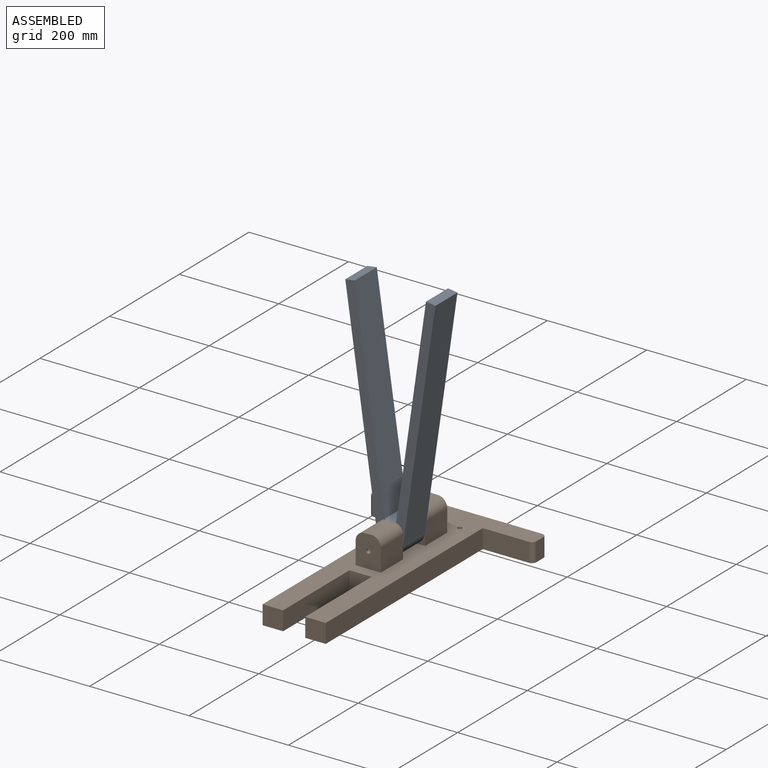
[diagram: assembled view]
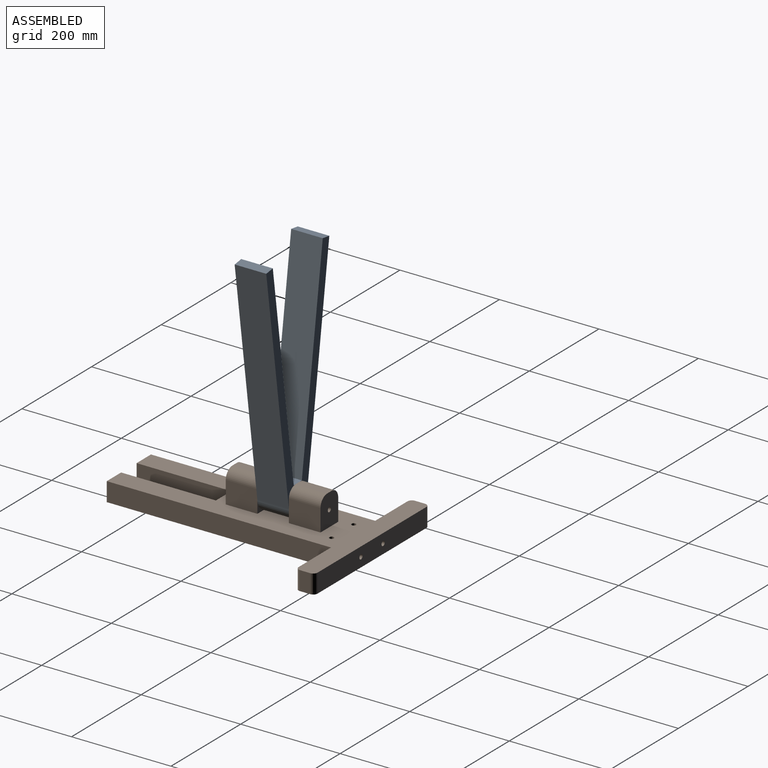
[diagram: assembled view, second angle]
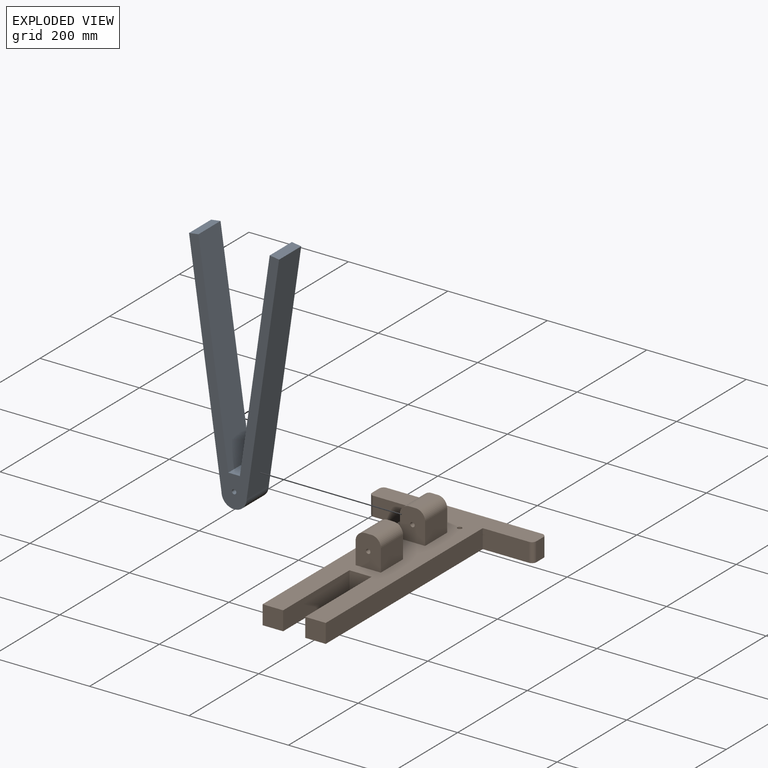
[diagram: exploded view]
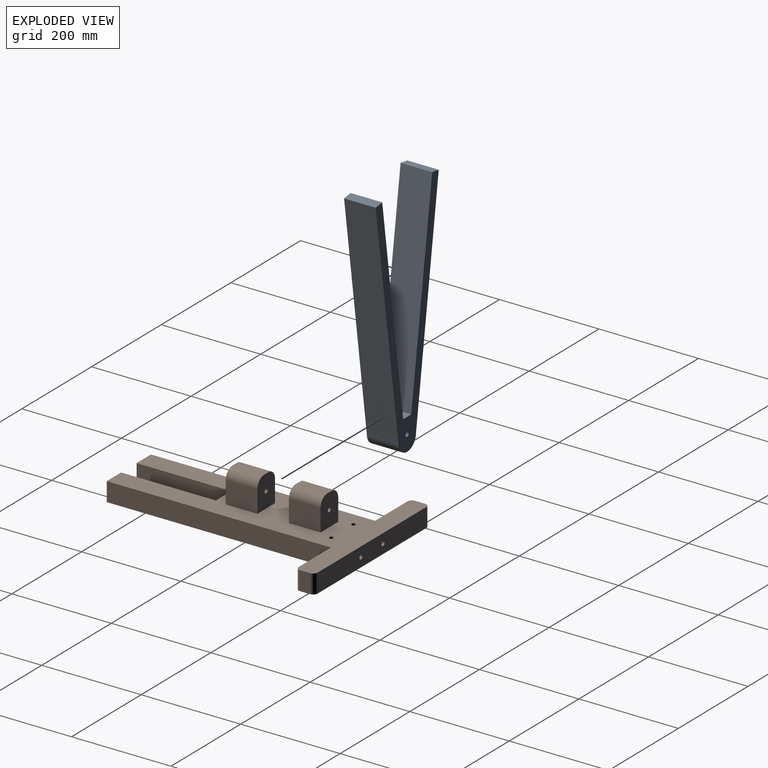
[diagram: exploded view, second angle]
ASSEMBLY  parts=2 mates=2
PART A: 11 faces, bbox 480.6x181.1x63.5 mm
  f0: plane 452.53x65.16mm, normal (-0.14,0.99,0), area 29032.2mm2, adj f1,f8,f9,f10
  f1: cylinder r=25.4mm len=63.5mm, axis (0,0,-1), area 5067.1mm2, adj f0,f2,f9,f10
  f2: plane 452.53x65.16mm, normal (-0.14,-0.99,0), area 29032.2mm2, adj f1,f3,f9,f10
  f3: plane 63.5x18.86mm, normal (0.99,-0.14,0), area 1209.7mm2, adj f2,f4,f9,f10
  f4: plane 417.15x63.5mm, normal (0.14,0.99,0), area 26762.1mm2, adj f3,f5,f9,f10
  f5: plane 63.5x23.28mm, normal (1,0,0), area 1478.3mm2, adj f4,f6,f9,f10
  f6: plane 417.15x63.5mm, normal (0.14,-0.99,0), area 26762.1mm2, adj f5,f8,f9,f10
  f7: cylinder r=4.45mm len=63.5mm, axis (0,0,-1), area 1773.5mm2, adj f9,f10
  f8: plane 63.5x18.86mm, normal (0.99,0.14,0), area 1209.7mm2, adj f0,f6,f9,f10
  f9: plane 480.65x181.13mm, normal (0,0,1), area 19100.8mm2, adj f0,f1,f2,f3,f4,f5,f6,f7
  f10: plane 480.65x181.13mm, normal (0,0,-1), area 19100.8mm2, adj f0,f1,f2,f3,f4,f5,f6,f7
PART B: 46 faces, bbox 489x330.2x101.6 mm
  f0: plane 488.95x330.2mm, normal (0,0,1), area 54727.3mm2, adj f3,f4,f5,f6,f7,f8,f9,f11
  f1: cylinder r=4.45mm len=59.06mm, axis (-1,0,0), area 1570.3mm2, adj f14,f21,f24
  f2: cylinder r=4.45mm len=59.06mm, axis (-1,0,0), area 1570.3mm2, adj f14,f16,f19
  f3: plane 450.85x38.1mm, normal (0,1,0), area 17177.4mm2, adj f0,f9,f10,f12
  f4: plane 450.85x38.1mm, normal (0,-1,0), area 17177.4mm2, adj f0,f5,f10,f11
  f5: plane 41.28x38.1mm, normal (1,0,0), area 1572.6mm2, adj f0,f4,f6,f10
  f6: plane 190.5x38.1mm, normal (0,1,0), area 7258.1mm2, adj f0,f5,f7,f10
  f7: plane 44.45x38.1mm, normal (1,0,0), area 1693.5mm2, adj f0,f6,f8,f10
  f8: plane 190.5x38.1mm, normal (0,-1,0), area 7258mm2, adj f0,f7,f9,f10
  f9: plane 41.28x38.1mm, normal (1,0,0), area 1572.6mm2, adj f0,f3,f8,f10
  f10: plane 488.95x330.2mm, normal (0,0,-1), area 61303mm2, adj f3,f4,f5,f6,f7,f8,f9,f11
  f11: plane 92.71x38.1mm, normal (1,0,0), area 3532.3mm2, adj f0,f4,f10,f45
  f12: plane 92.71x38.1mm, normal (1,0,0), area 3532.3mm2, adj f0,f3,f10,f43
  f13: plane 38.1x20.32mm, normal (0,1,0), area 774.2mm2, adj f0,f10,f42,f43
  f14: plane 312.42x38.1mm, normal (-1,0,0), area 11779.1mm2, adj f0,f1,f2,f10,f42,f44
  f15: plane 38.1x20.32mm, normal (0,-1,0), area 774.2mm2, adj f0,f10,f44,f45
  f16: cylinder r=4.45mm len=19.05mm, axis (0,0,1), area 453mm2, adj f0,f2,f18
  f17: plane 8.89x8.89mm, normal (-1,0,0), area 62.1mm2, adj f18
  f18: cylinder r=4.45mm len=17.15mm, axis (-1,0,0), area 399.8mm2, adj f16,f17,f19
  f19: cylinder r=4.45mm len=9.53mm, axis (0,0,1), area 187mm2, adj f2,f18,f20
  f20: plane 8.89x8.89mm, normal (0,0,1), area 62.1mm2, adj f19
  f21: cylinder r=4.45mm len=19.05mm, axis (0,0,1), area 453mm2, adj f0,f1,f23
  f22: plane 8.89x8.89mm, normal (-1,0,0), area 62.1mm2, adj f23
  f23: cylinder r=4.45mm len=17.15mm, axis (-1,0,0), area 399.8mm2, adj f21,f22,f24
  f24: cylinder r=4.45mm len=9.53mm, axis (0,0,1), area 187mm2, adj f1,f23,f25
  f25: plane 8.89x8.89mm, normal (0,0,1), area 62.1mm2, adj f24
  f26: plane 63.5x44.45mm, normal (0,-1,0), area 2822.6mm2, adj f0,f30,f31,f32
  f27: plane 63.5x44.45mm, normal (0,1,0), area 2822.6mm2, adj f0,f28,f31,f32
  f28: cylinder r=19.05mm len=63.5mm, axis (-1,0,0), area 1900.2mm2, adj f27,f29,f31,f32
  f29: plane 63.5x12.7mm, normal (0,0,1), area 806.5mm2, adj f28,f30,f31,f32
  f30: cylinder r=19.05mm len=63.5mm, axis (-1,0,0), area 1900.2mm2, adj f26,f29,f31,f32
  f31: plane 63.5x50.8mm, normal (1,0,0), area 3008mm2, adj f0,f26,f27,f28,f29,f30,f41
  f32: plane 63.5x50.8mm, normal (-1,0,0), area 3008mm2, adj f0,f26,f27,f28,f29,f30,f41
  f33: plane 63.5x44.45mm, normal (0,-1,0), area 2822.6mm2, adj f0,f37,f38,f39
  f34: plane 63.5x44.45mm, normal (0,1,0), area 2822.6mm2, adj f0,f35,f38,f39
  f35: cylinder r=19.05mm len=63.5mm, axis (-1,0,0), area 1900.2mm2, adj f34,f36,f38,f39
  f36: plane 63.5x12.7mm, normal (0,0,1), area 806.4mm2, adj f35,f37,f38,f39
  f37: cylinder r=19.05mm len=63.5mm, axis (-1,0,0), area 1900.2mm2, adj f33,f36,f38,f39
  f38: plane 63.5x50.8mm, normal (1,0,0), area 3008mm2, adj f0,f33,f34,f35,f36,f37,f40
  f39: plane 63.5x50.8mm, normal (-1,0,0), area 3008mm2, adj f0,f33,f34,f35,f36,f37,f40
  f40: cylinder r=4.45mm len=63.5mm, axis (-1,0,0), area 1773.5mm2, adj f38,f39
  f41: cylinder r=4.45mm len=63.5mm, axis (-1,0,0), area 1773.5mm2, adj f31,f32
  f42: cylinder r=8.89mm len=38.1mm, axis (0,0,-1), area 532mm2, adj f0,f10,f13,f14
  f43: cylinder r=8.89mm len=38.1mm, axis (0,0,-1), area 532mm2, adj f0,f10,f12,f13
  f44: cylinder r=8.89mm len=38.1mm, axis (0,0,-1), area 532mm2, adj f0,f10,f14,f15
  f45: cylinder r=8.89mm len=38.1mm, axis (0,0,-1), area 532mm2, adj f0,f10,f11,f15
PLACE A rot(axis=(-0.58,-0.58,-0.58),120deg) t=(-25.05,13.81,97.74)mm
PLACE B rot(axis=(0,0,-1),90deg) t=(-25.05,1.11,34.24)mm
MATE planar A.f9 <-> B.f38  axis (0,1,0) through (-25.05,77.31,305.48)mm
MATE cylindrical A.f7 <-> B.f40  axis (0,1,0) through (-25.05,77.31,104.09)mm
